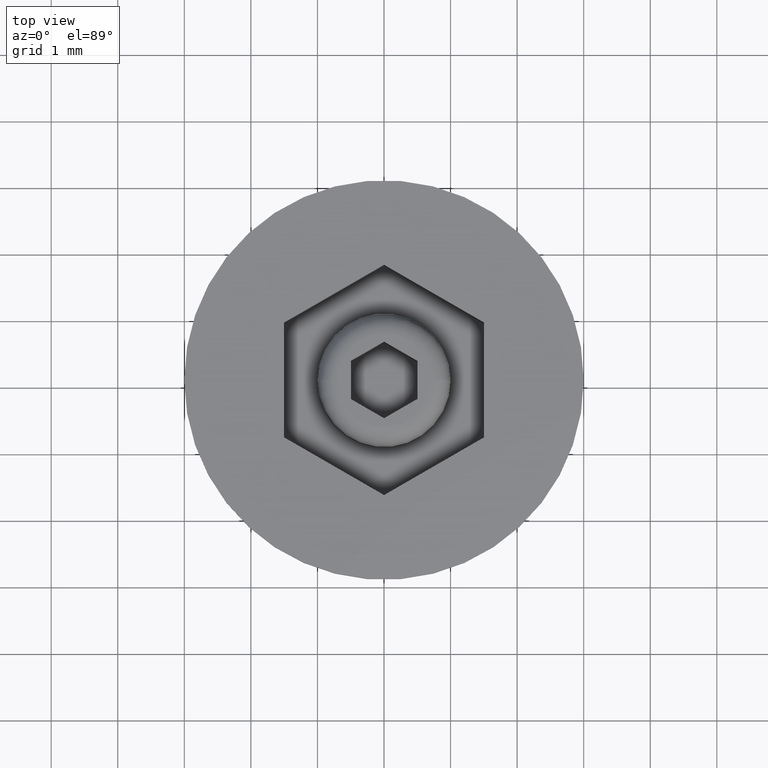
[diagram: clean part render]
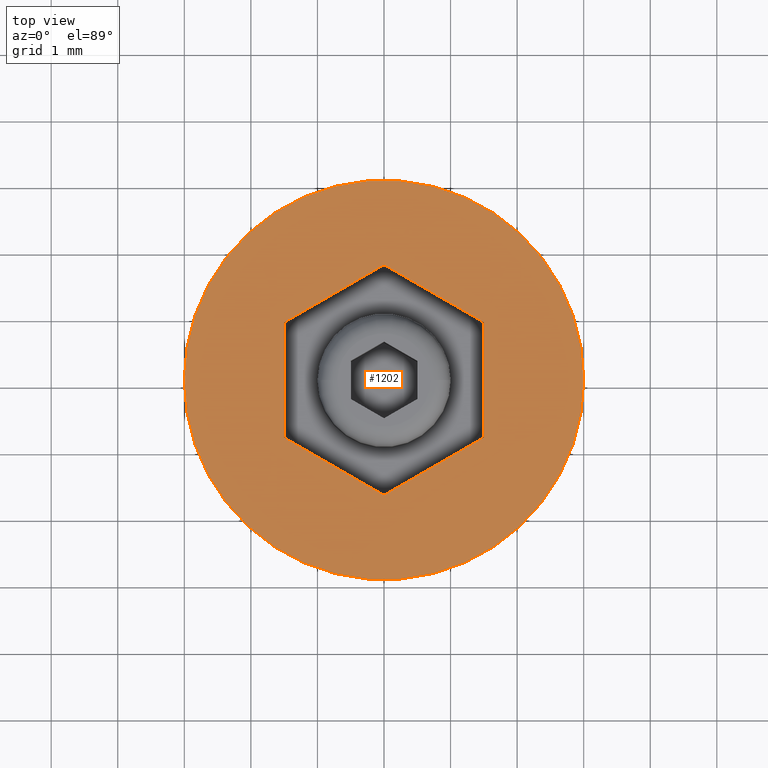
[diagram: same view with one face highlighted and labeled with its STEP entity id]
A machine part, top view. The second image highlights one B-rep face of the part: STEP entity #1202.
In plain terms, the highlighted planar face has unit normal (0, -0, 1).
Its self-contained STEP definition (entity closure, byte-faithful):
#37 = CARTESIAN_POINT ( 'NONE',  ( 1.500000000000000444, -0.8660254037844393737, 0.000000000000000000 ) ) ;
#48 = CARTESIAN_POINT ( 'NONE',  ( 0.000000000000000000, 0.000000000000000000, 0.000000000000000000 ) ) ;
#50 = VECTOR ( 'NONE', #1393, 1000.000000000000114 ) ;
#106 = VERTEX_POINT ( 'NONE', #1721 ) ;
#110 = EDGE_LOOP ( 'NONE', ( #1096, #917 ) ) ;
#139 = CARTESIAN_POINT ( 'NONE',  ( 0.000000000000000000, 0.000000000000000000, 0.000000000000000000 ) ) ;
#147 = LINE ( 'NONE', #727, #1601 ) ;
#156 = VERTEX_POINT ( 'NONE', #1589 ) ;
#163 = EDGE_LOOP ( 'NONE', ( #1233, #853, #1608, #280, #1335, #1820 ) ) ;
#176 = FACE_BOUND ( 'NONE', #163, .T. ) ;
#186 = AXIS2_PLACEMENT_3D ( 'NONE', #921, #1635, #930 ) ;
#196 = CARTESIAN_POINT ( 'NONE',  ( -1.500000000000000444, 0.8660254037844389297, 0.000000000000000000 ) ) ;
#215 = VECTOR ( 'NONE', #612, 1000.000000000000000 ) ;
#265 = LINE ( 'NONE', #832, #50 ) ;
#278 = DIRECTION ( 'NONE',  ( -0.8660254037844385966, 0.4999999999999998890, 0.000000000000000000 ) ) ;
#280 = ORIENTED_EDGE ( 'NONE', *, *, #1490, .F. ) ;
#310 = VECTOR ( 'NONE', #1165, 1000.000000000000000 ) ;
#360 = CIRCLE ( 'NONE', #1386, 3.000000000000000000 ) ;
#420 = VECTOR ( 'NONE', #278, 1000.000000000000227 ) ;
#466 = DIRECTION ( 'NONE',  ( 0.000000000000000000, -0.000000000000000000, 1.000000000000000000 ) ) ;
#597 = EDGE_CURVE ( 'NONE', #1064, #737, #662, .T. ) ;
#612 = DIRECTION ( 'NONE',  ( 0.000000000000000000, 1.000000000000000000, 0.000000000000000000 ) ) ;
#637 = CARTESIAN_POINT ( 'NONE',  ( 0.000000000000000000, 1.732050807568877415, 0.000000000000000000 ) ) ;
#662 = CIRCLE ( 'NONE', #186, 3.000000000000000000 ) ;
#727 = CARTESIAN_POINT ( 'NONE',  ( -1.500000000000000444, -0.8660254037844387076, 0.000000000000000000 ) ) ;
#731 = VERTEX_POINT ( 'NONE', #1228 ) ;
#737 = VERTEX_POINT ( 'NONE', #822 ) ;
#746 = FACE_OUTER_BOUND ( 'NONE', #110, .T. ) ;
#769 = VERTEX_POINT ( 'NONE', #1181 ) ;
#775 = LINE ( 'NONE', #637, #1352 ) ;
#822 = CARTESIAN_POINT ( 'NONE',  ( 3.000000000000000000, 0.000000000000000000, 0.000000000000000000 ) ) ;
#832 = CARTESIAN_POINT ( 'NONE',  ( -3.346587165010555089E-16, -1.732050807568877859, 0.000000000000000000 ) ) ;
#853 = ORIENTED_EDGE ( 'NONE', *, *, #1183, .F. ) ;
#892 = LINE ( 'NONE', #1318, #420 ) ;
#917 = ORIENTED_EDGE ( 'NONE', *, *, #597, .T. ) ;
#921 = CARTESIAN_POINT ( 'NONE',  ( 0.000000000000000000, 0.000000000000000000, 0.000000000000000000 ) ) ;
#928 = VERTEX_POINT ( 'NONE', #1682 ) ;
#930 = DIRECTION ( 'NONE',  ( 1.000000000000000000, 0.000000000000000000, 0.000000000000000000 ) ) ;
#992 = DIRECTION ( 'NONE',  ( 1.000000000000000000, 0.000000000000000000, 0.000000000000000000 ) ) ;
#1031 = DIRECTION ( 'NONE',  ( 1.000000000000000000, 0.000000000000000000, 0.000000000000000000 ) ) ;
#1061 = EDGE_CURVE ( 'NONE', #769, #1468, #265, .T. ) ;
#1064 = VERTEX_POINT ( 'NONE', #1256 ) ;
#1096 = ORIENTED_EDGE ( 'NONE', *, *, #1260, .T. ) ;
#1115 = EDGE_CURVE ( 'NONE', #928, #731, #1184, .T. ) ;
#1150 = DIRECTION ( 'NONE',  ( 0.8660254037844384856, -0.5000000000000002220, 0.000000000000000000 ) ) ;
#1165 = DIRECTION ( 'NONE',  ( 0.000000000000000000, -1.000000000000000000, 0.000000000000000000 ) ) ;
#1181 = CARTESIAN_POINT ( 'NONE',  ( -3.346587165010555089E-16, -1.732050807568877859, 0.000000000000000000 ) ) ;
#1183 = EDGE_CURVE ( 'NONE', #1468, #106, #1334, .T. ) ;
#1184 = LINE ( 'NONE', #196, #310 ) ;
#1202 = ADVANCED_FACE ( 'NONE', ( #176, #746 ), #1306, .T. ) ;
#1210 = EDGE_CURVE ( 'NONE', #106, #156, #892, .T. ) ;
#1218 = AXIS2_PLACEMENT_3D ( 'NONE', #48, #466, #1031 ) ;
#1228 = CARTESIAN_POINT ( 'NONE',  ( -1.500000000000000444, -0.8660254037844387076, 0.000000000000000000 ) ) ;
#1233 = ORIENTED_EDGE ( 'NONE', *, *, #1210, .F. ) ;
#1256 = CARTESIAN_POINT ( 'NONE',  ( -3.000000000000000000, 3.673940397442059868E-16, 0.000000000000000000 ) ) ;
#1260 = EDGE_CURVE ( 'NONE', #737, #1064, #360, .T. ) ;
#1306 = PLANE ( 'NONE',  #1218 ) ;
#1318 = CARTESIAN_POINT ( 'NONE',  ( 1.500000000000000444, 0.8660254037844385966, 0.000000000000000000 ) ) ;
#1334 = LINE ( 'NONE', #37, #215 ) ;
#1335 = ORIENTED_EDGE ( 'NONE', *, *, #1115, .F. ) ;
#1352 = VECTOR ( 'NONE', #1767, 1000.000000000000114 ) ;
#1386 = AXIS2_PLACEMENT_3D ( 'NONE', #139, #1392, #992 ) ;
#1392 = DIRECTION ( 'NONE',  ( -0.000000000000000000, -0.000000000000000000, 1.000000000000000000 ) ) ;
#1393 = DIRECTION ( 'NONE',  ( 0.8660254037844388186, 0.4999999999999996669, 0.000000000000000000 ) ) ;
#1468 = VERTEX_POINT ( 'NONE', #1701 ) ;
#1490 = EDGE_CURVE ( 'NONE', #731, #769, #147, .T. ) ;
#1589 = CARTESIAN_POINT ( 'NONE',  ( 1.084202172485504434E-16, 1.732050807568877637, 0.000000000000000000 ) ) ;
#1601 = VECTOR ( 'NONE', #1150, 1000.000000000000114 ) ;
#1608 = ORIENTED_EDGE ( 'NONE', *, *, #1061, .F. ) ;
#1635 = DIRECTION ( 'NONE',  ( -0.000000000000000000, -0.000000000000000000, 1.000000000000000000 ) ) ;
#1682 = CARTESIAN_POINT ( 'NONE',  ( -1.500000000000000444, 0.8660254037844389297, 0.000000000000000000 ) ) ;
#1701 = CARTESIAN_POINT ( 'NONE',  ( 1.500000000000000444, -0.8660254037844393737, 0.000000000000000000 ) ) ;
#1721 = CARTESIAN_POINT ( 'NONE',  ( 1.500000000000000444, 0.8660254037844385966, 0.000000000000000000 ) ) ;
#1767 = DIRECTION ( 'NONE',  ( -0.8660254037844387076, -0.4999999999999997780, 0.000000000000000000 ) ) ;
#1798 = EDGE_CURVE ( 'NONE', #156, #928, #775, .T. ) ;
#1820 = ORIENTED_EDGE ( 'NONE', *, *, #1798, .F. ) ;